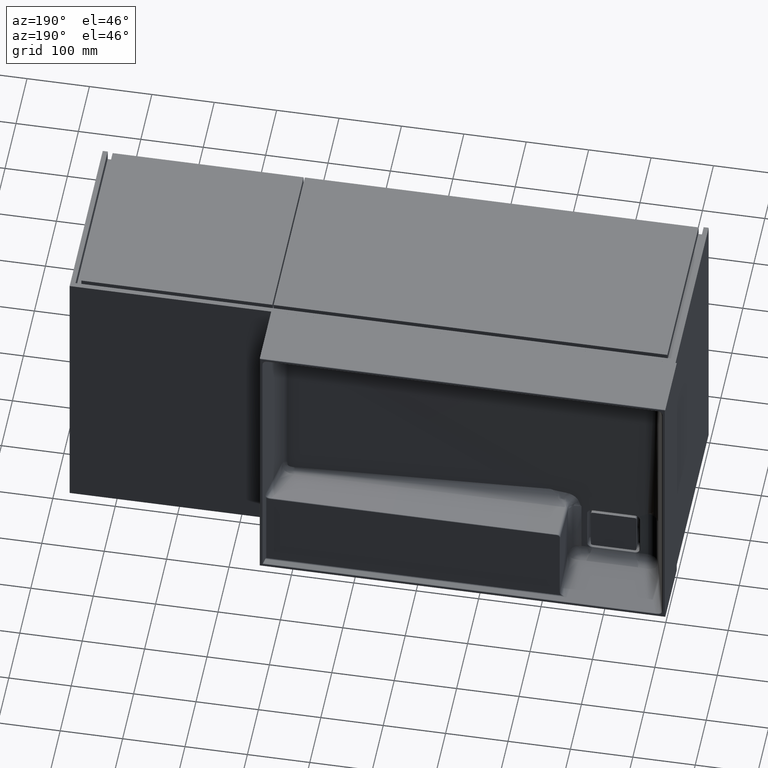
[diagram: clean part render]
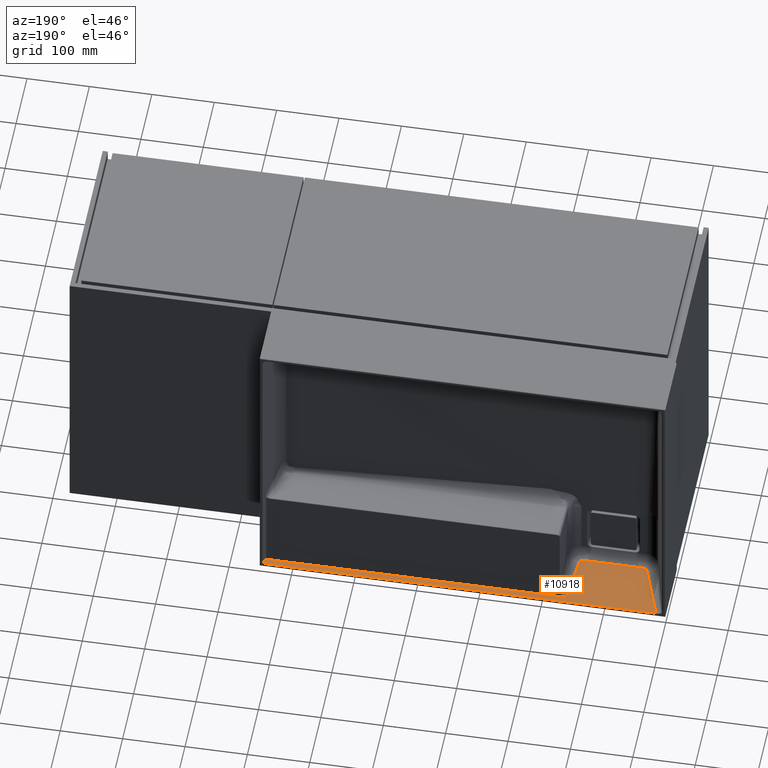
[diagram: same view with one face highlighted and labeled with its STEP entity id]
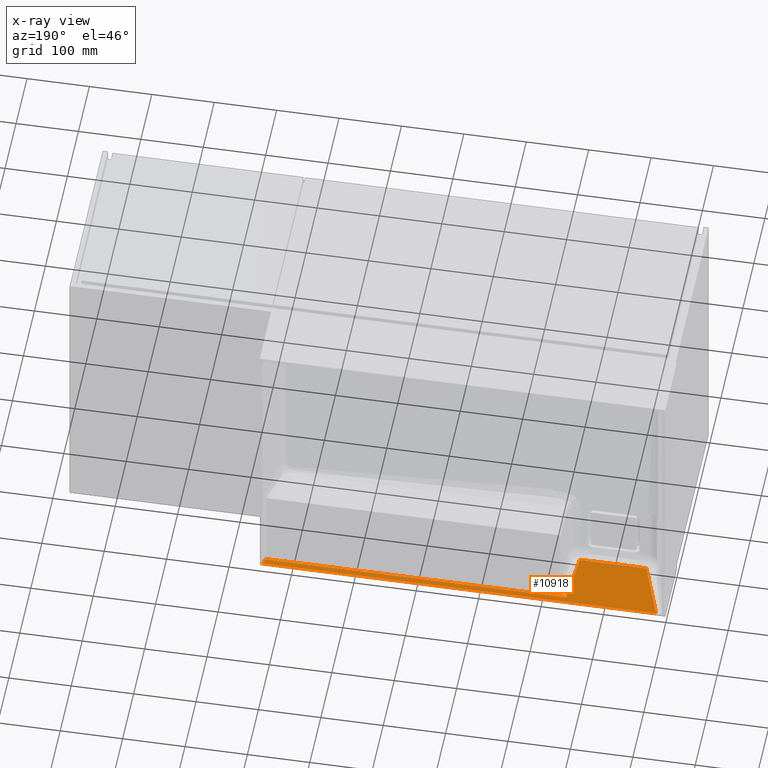
[diagram: x-ray of the same camera — body ghosted, the highlighted face saturated]
A machine part, auxiliary view. The second image highlights one B-rep face of the part: STEP entity #10918.
The next image is the same camera in x-ray: the body ghosted, the highlighted face saturated — about 0% of this face is hidden behind the body in this view.
In plain terms, the highlighted planar face has unit normal (0, -0.2588, -0.9659).
Its self-contained STEP definition (entity closure, byte-faithful):
#279 = CARTESIAN_POINT ( 'NONE',  ( 645.0000000000000000, 404.2588190451024843, -464.8014011616900234 ) ) ;
#525 = DIRECTION ( 'NONE',  ( 0.0000000000000000000, -0.2588190451025213501, -0.9659258262890680902 ) ) ;
#917 = EDGE_CURVE ( 'NONE', #9833, #7269, #8076, .T. ) ;
#1108 = ORIENTED_EDGE ( 'NONE', *, *, #11487, .T. ) ;
#1115 = CARTESIAN_POINT ( 'NONE',  ( 43.50578298356727913, 329.5092834666376120, -444.7723234688387492 ) ) ;
#1144 = ORIENTED_EDGE ( 'NONE', *, *, #11267, .T. ) ;
#1649 = CARTESIAN_POINT ( 'NONE',  ( 139.7164681252472178, 329.0824381430521157, -444.6579506090910741 ) ) ;
#1715 = FACE_OUTER_BOUND ( 'NONE', #6265, .T. ) ;
#1835 = CARTESIAN_POINT ( 'NONE',  ( 156.7452144161982233, 374.1220620255554081, -456.7262814558093851 ) ) ;
#1991 = ORIENTED_EDGE ( 'NONE', *, *, #10222, .T. ) ;
#2858 = CARTESIAN_POINT ( 'NONE',  ( 57.30408546801751868, 329.0824381430521157, -444.6579506090910741 ) ) ;
#2903 = CARTESIAN_POINT ( 'NONE',  ( 43.50578298356727913, 329.5092834666376120, -444.7723234688387492 ) ) ;
#3380 = EDGE_CURVE ( 'NONE', #7269, #8107, #4456, .T. ) ;
#3391 = CARTESIAN_POINT ( 'NONE',  ( 143.1540843394640206, 329.1887795141407196, -444.6864446935962860 ) ) ;
#3428 = ORIENTED_EDGE ( 'NONE', *, *, #13523, .T. ) ;
#4068 = DIRECTION ( 'NONE',  ( 1.000000000000000000, 0.0000000000000000000, 0.0000000000000000000 ) ) ;
#4110 = CARTESIAN_POINT ( 'NONE',  ( 14.94247844910823275, 404.2588190451016885, -464.8014011616896823 ) ) ;
#4456 = B_SPLINE_CURVE_WITH_KNOTS ( 'NONE', 3,
 ( #1115, #5998, #10865, #15734 ),
 .UNSPECIFIED., .F., .F.,
 ( 4, 4 ),
 ( -0.03236793165791380933, -0.01856255482293409781 ),
 .UNSPECIFIED. ) ;
#4526 = ORIENTED_EDGE ( 'NONE', *, *, #3380, .T. ) ;
#4913 = VERTEX_POINT ( 'NONE', #13225 ) ;
#5142 = LINE ( 'NONE', #10017, #13429 ) ;
#5157 = DIRECTION ( 'NONE',  ( -1.000000000000000000, 0.0000000000000000000, 0.0000000000000000000 ) ) ;
#5399 = DIRECTION ( 'NONE',  ( 0.0000000000000000000, 0.9659258262890680902, -0.2588190451025213501 ) ) ;
#5436 = B_SPLINE_CURVE_WITH_KNOTS ( 'NONE', 3,
 ( #7902, #12778, #1835, #6710 ),
 .UNSPECIFIED., .F., .F.,
 ( 4, 4 ),
 ( 0.1742689622615147815, 1.000000000000000000 ),
 .UNSPECIFIED. ) ;
#5998 = CARTESIAN_POINT ( 'NONE',  ( 48.10521714451462572, 329.3670016920427770, -444.7341991822384557 ) ) ;
#6069 = VERTEX_POINT ( 'NONE', #8023 ) ;
#6265 = EDGE_LOOP ( 'NONE', ( #1144, #14770, #10873, #4526, #3428, #1991, #1108, #7590 ) ) ;
#6391 = CARTESIAN_POINT ( 'NONE',  ( 57.30408546801751868, 329.0824381430521157, -444.6579506090910741 ) ) ;
#6596 = PLANE ( 'NONE',  #13681 ) ;
#6710 = CARTESIAN_POINT ( 'NONE',  ( 160.1031632403440597, 396.4823619097949745, -462.7177057523090866 ) ) ;
#6770 = B_SPLINE_CURVE_WITH_KNOTS ( 'NONE', 3,
 ( #14330, #3391, #8258, #13122 ),
 .UNSPECIFIED., .F., .F.,
 ( 4, 4 ),
 ( 0.4790181454550358486, 0.4893362814653213766 ),
 .UNSPECIFIED. ) ;
#7077 = EDGE_CURVE ( 'NONE', #8734, #6069, #10141, .T. ) ;
#7269 = VERTEX_POINT ( 'NONE', #12994 ) ;
#7442 = CARTESIAN_POINT ( 'NONE',  ( 644.8014011616897960, 404.2588190451024843, -464.8014011616900234 ) ) ;
#7590 = ORIENTED_EDGE ( 'NONE', *, *, #7077, .T. ) ;
#7717 = CARTESIAN_POINT ( 'NONE',  ( 84.77487968709421295, 329.0824381430521157, -444.6579506090910741 ) ) ;
#7729 = CARTESIAN_POINT ( 'NONE',  ( 139.7164681252472178, 329.0824381430521157, -444.6579506090910741 ) ) ;
#7902 = CARTESIAN_POINT ( 'NONE',  ( 150.0293167681535351, 329.4014622564734509, -444.7434328626482625 ) ) ;
#8023 = CARTESIAN_POINT ( 'NONE',  ( 642.7177057523090298, 396.4823619097949745, -462.7177057523090866 ) ) ;
#8076 = B_SPLINE_CURVE_WITH_KNOTS ( 'NONE', 3,
 ( #4110, #8984, #13849, #2903 ),
 .UNSPECIFIED., .F., .F.,
 ( 4, 4 ),
 ( 0.008258209240227496611, 0.8411146133847914319 ),
 .UNSPECIFIED. ) ;
#8083 = VECTOR ( 'NONE', #5157, 1000.000000000000000 ) ;
#8107 = VERTEX_POINT ( 'NONE', #6391 ) ;
#8258 = CARTESIAN_POINT ( 'NONE',  ( 146.5917005536812781, 329.2951208852294940, -444.7149387781015548 ) ) ;
#8734 = VERTEX_POINT ( 'NONE', #9631 ) ;
#8984 = CARTESIAN_POINT ( 'NONE',  ( 24.46357996031645854, 379.3423071855407898, -458.1250419307198740 ) ) ;
#9631 = CARTESIAN_POINT ( 'NONE',  ( 160.1031632403440597, 396.4823619097949745, -462.7177057523090866 ) ) ;
#9833 = VERTEX_POINT ( 'NONE', #12982 ) ;
#10017 = CARTESIAN_POINT ( 'NONE',  ( 616.1204086644462450, 297.2198978338881830, -436.1204086644464724 ) ) ;
#10141 = LINE ( 'NONE', #15000, #12933 ) ;
#10222 = EDGE_CURVE ( 'NONE', #12773, #4913, #6770, .T. ) ;
#10865 = CARTESIAN_POINT ( 'NONE',  ( 52.70465130626604378, 329.2247199175474179, -444.6960748956648217 ) ) ;
#10873 = ORIENTED_EDGE ( 'NONE', *, *, #917, .T. ) ;
#10918 = ADVANCED_FACE ( 'NONE', ( #1715 ), #6596, .F. ) ;
#11228 = VERTEX_POINT ( 'NONE', #7442 ) ;
#11230 = LINE ( 'NONE', #279, #8083 ) ;
#11267 = EDGE_CURVE ( 'NONE', #6069, #11228, #5142, .T. ) ;
#11470 = CARTESIAN_POINT ( 'NONE',  ( 645.0000000000000000, 404.9999999999999432, -465.0000000000000568 ) ) ;
#11487 = EDGE_CURVE ( 'NONE', #4913, #8734, #5436, .T. ) ;
#11941 = EDGE_CURVE ( 'NONE', #11228, #9833, #11230, .T. ) ;
#12593 = CARTESIAN_POINT ( 'NONE',  ( 112.2456739061707651, 329.0824381430521157, -444.6579506090910741 ) ) ;
#12773 = VERTEX_POINT ( 'NONE', #7729 ) ;
#12778 = CARTESIAN_POINT ( 'NONE',  ( 153.3872655920523869, 351.7617621409629578, -450.7348571592150392 ) ) ;
#12933 = VECTOR ( 'NONE', #4068, 1000.000000000000000 ) ;
#12982 = CARTESIAN_POINT ( 'NONE',  ( 14.94247844910823275, 404.2588190451016885, -464.8014011616896823 ) ) ;
#12994 = CARTESIAN_POINT ( 'NONE',  ( 43.50578298356727913, 329.5092834666376120, -444.7723234688387492 ) ) ;
#13122 = CARTESIAN_POINT ( 'NONE',  ( 150.0293167681535351, 329.4014622564734509, -444.7434328626482625 ) ) ;
#13225 = CARTESIAN_POINT ( 'NONE',  ( 150.0293167681535351, 329.4014622564734509, -444.7434328626482625 ) ) ;
#13429 = VECTOR ( 'NONE', #14874, 1000.000000000000227 ) ;
#13523 = EDGE_CURVE ( 'NONE', #8107, #12773, #14911, .T. ) ;
#13681 = AXIS2_PLACEMENT_3D ( 'NONE', #11470, #525, #5399 ) ;
#13849 = CARTESIAN_POINT ( 'NONE',  ( 33.98468147155551122, 354.4257953259983083, -451.4486826997549542 ) ) ;
#14330 = CARTESIAN_POINT ( 'NONE',  ( 139.7164681252472178, 329.0824381430521157, -444.6579506090910741 ) ) ;
#14770 = ORIENTED_EDGE ( 'NONE', *, *, #11941, .T. ) ;
#14874 = DIRECTION ( 'NONE',  ( 0.2505628070857320311, 0.9351131265310290708, -0.2505628070857320866 ) ) ;
#14911 = B_SPLINE_CURVE_WITH_KNOTS ( 'NONE', 3,
 ( #2858, #7717, #12593, #1649 ),
 .UNSPECIFIED., .F., .F.,
 ( 4, 4 ),
 ( 0.1852835318747509674, 0.2676959145319806610 ),
 .UNSPECIFIED. ) ;
#15000 = CARTESIAN_POINT ( 'NONE',  ( 645.0000000000000000, 396.4823619097949745, -462.7177057523090866 ) ) ;
#15734 = CARTESIAN_POINT ( 'NONE',  ( 57.30408546801751868, 329.0824381430521157, -444.6579506090910741 ) ) ;